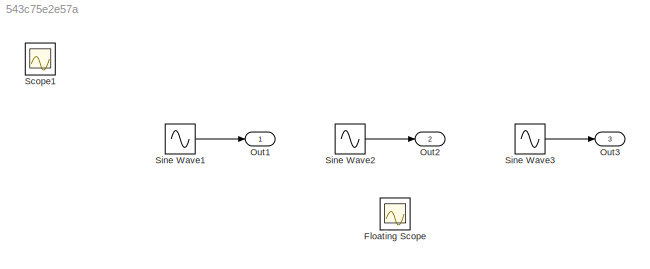
MODEL slx_543c75e2e57a
KIND model
CONFIG AbsTol = auto
CONFIG EnableMultiTasking = off
CONFIG FixedStep = auto
CONFIG MaxStep = auto
CONFIG MinStep = auto
CONFIG RelTol = 1e-3
CONFIG SampleTimeConstraint = Unconstrained
CONFIG Solver = VariableStepAuto
CONFIG SolverName = VariableStepAuto
CONFIG StartTime = 0.0
CONFIG StopTime = 10.0
BLOCK [Scope] Floating Scope
  Floating = on
  NumInputPorts = 1
  Ports = []
  ScopeSpecificationString = Simulink.scopes.TimeScopeBlockCfg('CurrentConfiguration', extmgr.ConfigurationSet(extmgr.Configuration('Core','General UI',true),extmgr.Configuration('Core','Source UI',true),extmgr.Configuration('Sources','WiredSimulink',true),extmgr.Configuration('Visuals','Time Domain',true,'SerializedDisplays',{struct('MinYLimReal','-3.7369','MaxYLimReal','3.74712','YLabelReal','','MinYLimMag','0.00000','MaxYL...<+1398ch>
BLOCK [Outport] Out1
BLOCK [Outport] Out2
  Port = 2
BLOCK [Outport] Out3
  Port = 3
BLOCK [Scope] Scope1
  Floating = off
  IOType = viewer
  NumInputPorts = 1
  Ports = []
  ScopeSpecificationString = Simulink.scopes.TimeScopeBlockCfg('CurrentConfiguration', extmgr.ConfigurationSet(extmgr.Configuration('Core','General UI',true),extmgr.Configuration('Core','Source UI',true),extmgr.Configuration('Sources','WiredSimulink',true,'DataLoggingVariableName','ScopeData2'),extmgr.Configuration('Visuals','Time Domain',true,'SerializedDisplays',{struct('MinYLimReal','-2.49126','MaxYLimReal','2.49808','YLab...<+1387ch>
BLOCK [Sin] Sine Wave1
  Ports = [0, 1]
  SampleTime = 0
BLOCK [Sin] Sine Wave2
  Amplitude = 2
  Ports = [0, 1]
  SampleTime = 0
BLOCK [Sin] Sine Wave3
  Amplitude = 3
  Ports = [0, 1]
  SampleTime = 0
LINE Sine Wave1:1 -> Out1:1
LINE Sine Wave2:1 -> Out2:1
LINE Sine Wave3:1 -> Out3:1
